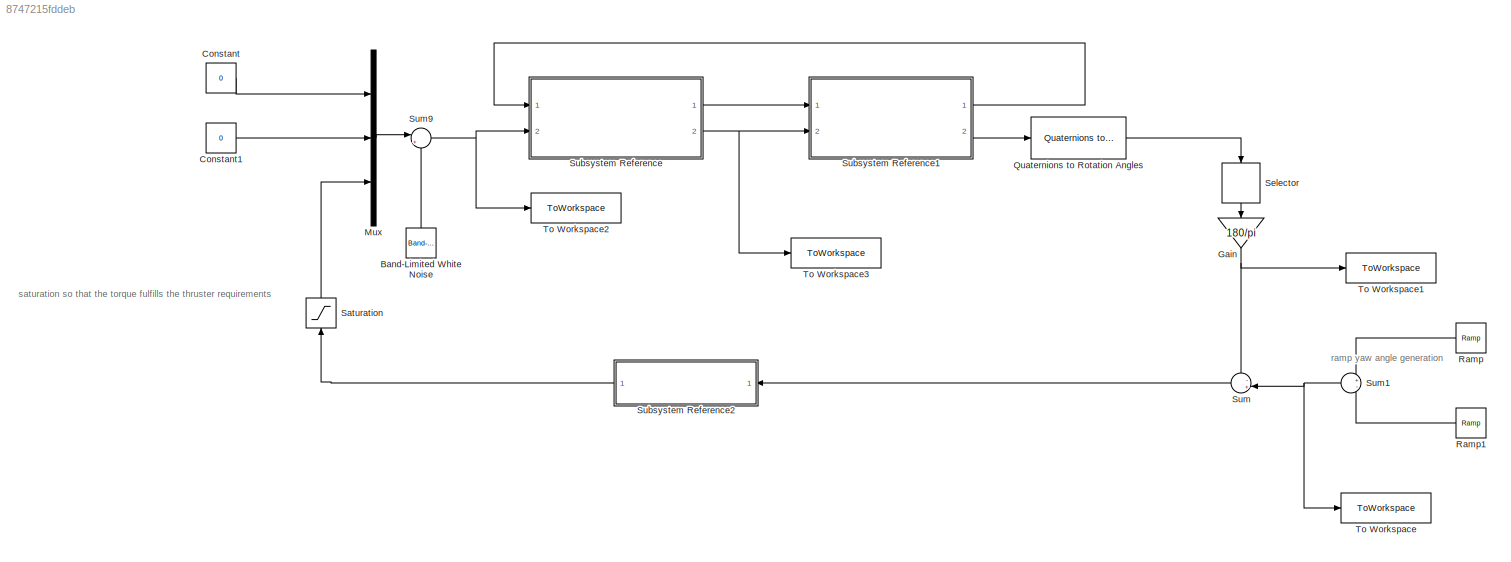
MODEL slx_8747215fddeb
KIND model
CONFIG AbsTol = auto
CONFIG EnableMultiTasking = off
CONFIG FixedStep = auto
CONFIG MaxStep = auto
CONFIG MinStep = auto
CONFIG RelTol = 1e-3
CONFIG SampleTimeConstraint = Unconstrained
CONFIG SolverName = VariableStepAuto
CONFIG StartTime = 0.0
CONFIG StopTime = 200
BLOCK [Reference] Band-Limited White Noise  REF=simulink/Sources/Band-Limited
White Noise
  NameLocation = right
  Ports = [0, 1]
  SourceBlock = simulink/Sources/Band-Limited\nWhite Noise
  SourceProductBaseCode = SL
  SourceType = Band-Limited White Noise.
BLOCK [Constant] Constant
  Value = 0
BLOCK [Constant] Constant1
  Value = 0
BLOCK [Gain] Gain
  Gain = 180/pi
  NameLocation = left
BLOCK [Mux] Mux
  DisplayOption = bar
  Inputs = 3
  Ports = [3, 1]
BLOCK [Reference] Quaternions to Rotation Angles  REF=sharedtransform/Quaternions to Rotation Angles
  AttributesFormatString = Rotation Order: %<rotationOrder>
  Ports = [1, 1]
  SourceBlock = sharedtransform/Quaternions to Rotation Angles
  SourceProductBaseCode = AE,PW,DR,MT,UV,VE
  SourceType = Quat2Ang
BLOCK [Reference] Ramp  REF=simulink/Sources/Ramp
  NameLocation = top
  Ports = [0, 1]
  SourceBlock = simulink/Sources/Ramp
  SourceProductBaseCode = SL
  SourceType = Ramp
BLOCK [Reference] Ramp1  REF=simulink/Sources/Ramp
  NameLocation = top
  Ports = [0, 1]
  SourceBlock = simulink/Sources/Ramp
  SourceProductBaseCode = SL
  SourceType = Ramp
BLOCK [Saturate] Saturation
  LowerLimit = -Tmax
  NameLocation = right
  UpperLimit = Tmax
BLOCK [Selector] Selector
  IndexOptions = Index vector (dialog)
  Indices = [1]
  InputPortWidth = 3
  NameLocation = left
  OutputSizes = 1
  Ports = [1, 1]
BLOCK [SubSystem] Subsystem Reference
  Ports = [2, 2]
  ReferencedSubsystem = Dynamics
  RequestExecContextInheritance = off
BLOCK [SubSystem] Subsystem Reference1
  Ports = [2, 2]
  ReferencedSubsystem = Kinematics
  RequestExecContextInheritance = off
BLOCK [SubSystem] Subsystem Reference2
  NameLocation = top
  Ports = [1, 1]
  ReferencedSubsystem = PID
  RequestExecContextInheritance = off
BLOCK [Sum] Sum
  Inputs = -+|
  NameLocation = top
  Ports = [2, 1]
BLOCK [Sum] Sum1
  Inputs = +-
  NameLocation = top
  Ports = [2, 1]
BLOCK [Sum] Sum9
  Inputs = |++
  Ports = [2, 1]
BLOCK [ToWorkspace] To Workspace
  FixptAsFi = on
  MaxDataPoints = inf
  Ports = [1]
  SampleTime = -1
  SaveFormat = Timeseries
  VariableName = yaw_ramp
BLOCK [ToWorkspace] To Workspace1
  FixptAsFi = on
  MaxDataPoints = inf
  Ports = [1]
  SampleTime = -1
  SaveFormat = Timeseries
  VariableName = yaw
BLOCK [ToWorkspace] To Workspace2
  FixptAsFi = on
  MaxDataPoints = inf
  Ports = [1]
  SampleTime = -1
  SaveFormat = Timeseries
  VariableName = Torque
BLOCK [ToWorkspace] To Workspace3
  FixptAsFi = on
  MaxDataPoints = inf
  Ports = [1]
  SampleTime = -1
  SaveFormat = Timeseries
  VariableName = omega
ANNOTATION (root): ramp yaw angle generation
ANNOTATION (root): saturation so that the torque fulfills the thruster requirements
LINE Band-Limited White Noise:1 -> Sum9:2
LINE Constant1:1 -> Mux:2
LINE Constant:1 -> Mux:1
NET Gain:1 -> Sum:1, To Workspace1:1
LINE Mux:1 -> Sum9:1
LINE Quaternions to Rotation Angles:1 -> Selector:1
LINE Ramp1:1 -> Sum1:2
LINE Ramp:1 -> Sum1:1
LINE Saturation:1 -> Mux:3
LINE Selector:1 -> Gain:1
LINE Subsystem Reference1:1 -> Subsystem Reference:1
LINE Subsystem Reference1:2 -> Quaternions to Rotation Angles:1
LINE Subsystem Reference2:1 -> Saturation:1
LINE Subsystem Reference:1 -> Subsystem Reference1:1
NET Subsystem Reference:2 -> Subsystem Reference1:2, To Workspace3:1
NET Sum1:1 -> Sum:2, To Workspace:1
NET Sum9:1 -> Subsystem Reference:2, To Workspace2:1
LINE Sum:1 -> Subsystem Reference2:1
note: NET lines group one-source signal fan-out (src -> all destinations, sorted); 1:1 wires keep LINE
